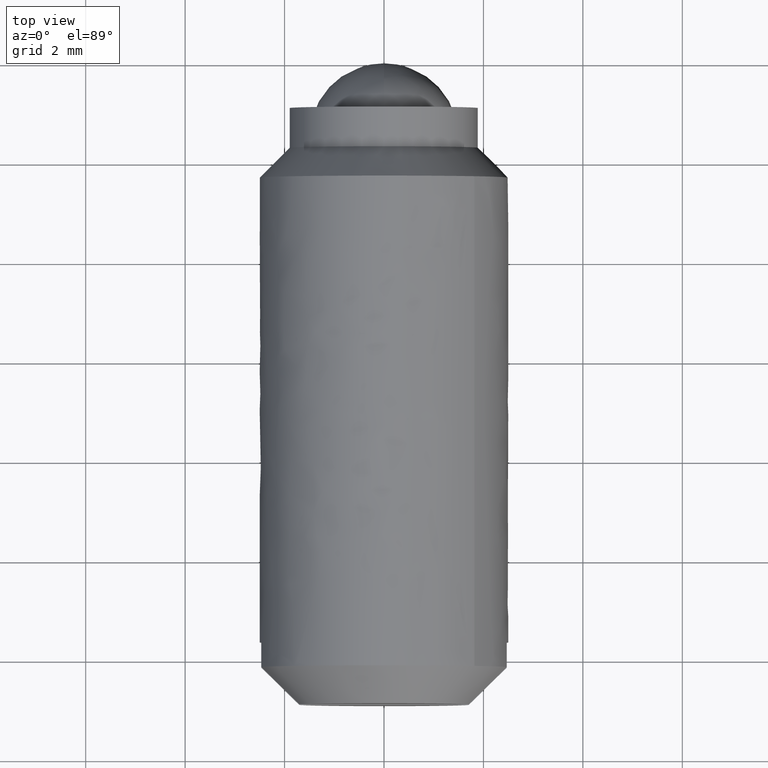
[diagram: clean part render]
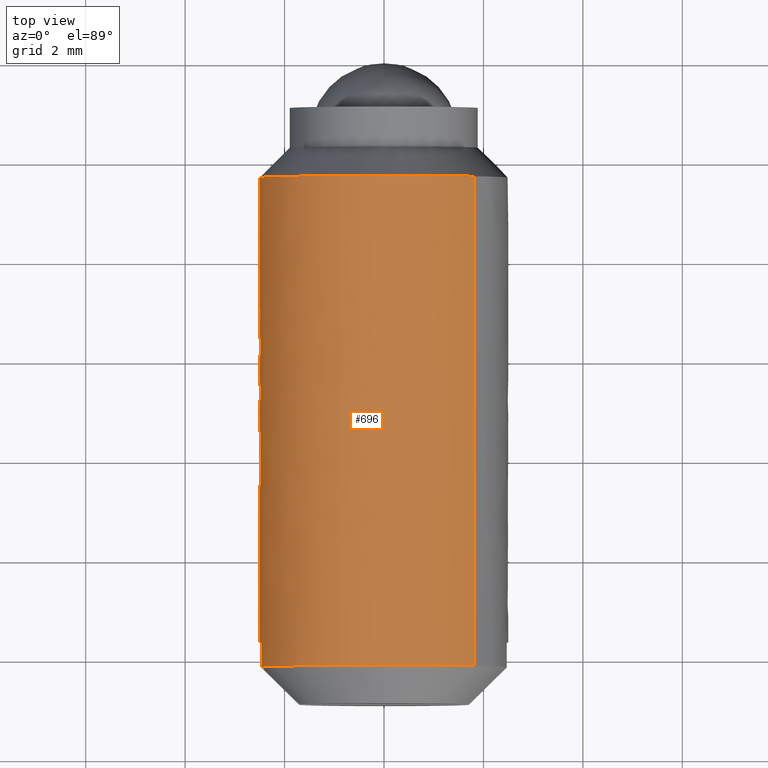
[diagram: same view with one face highlighted and labeled with its STEP entity id]
A machine part, top view. The second image highlights one B-rep face of the part: STEP entity #696.
In plain terms, the highlighted face is a freeform B-spline surface patch.
Its self-contained STEP definition (entity closure, byte-faithful):
#465=CARTESIAN_POINT('',(-2.495336996056258,-2.300000000002961,0.152621348859628));
#466=VERTEX_POINT('',#465);
#472=CARTESIAN_POINT('',(0.0,-2.300000000000000,2.499999999999999));
#473=VERTEX_POINT('',#472);
#474=CARTESIAN_POINT('',(0.0,-2.300000000000000,2.499999999999999));
#475=CARTESIAN_POINT('',(-2.351765167222105,-2.300000000000000,2.500000000000000));
#476=CARTESIAN_POINT('',(-2.495336996056259,-2.300000000002961,0.152621348859628));
#484=(BOUNDED_CURVE()B_SPLINE_CURVE(2,(#474,#475,#476),.UNSPECIFIED.,.F.,.U.)B_SPLINE_CURVE_WITH_KNOTS((3,3),(0.500000000000000,0.739332962238883),.UNSPECIFIED.)CURVE()GEOMETRIC_REPRESENTATION_ITEM()RATIONAL_B_SPLINE_CURVE((1.0,0.719603993286780,0.976072041666589))REPRESENTATION_ITEM(''));
#485=EDGE_CURVE('',#473,#466,#484,.T.);
#487=CARTESIAN_POINT('',(1.818315486528456,-2.299999999999970,1.715729813068122));
#488=VERTEX_POINT('',#487);
#489=CARTESIAN_POINT('',(1.818315486528456,-2.299999999999971,1.715729813068122));
#490=CARTESIAN_POINT('',(1.078292277158913,-2.300000000000000,2.500000000000000));
#491=CARTESIAN_POINT('',(0.0,-2.300000000000000,2.499999999999999));
#499=(BOUNDED_CURVE()B_SPLINE_CURVE(2,(#489,#490,#491),.UNSPECIFIED.,.F.,.U.)B_SPLINE_CURVE_WITH_KNOTS((3,3),(0.370620956215220,0.500000000000000),.UNSPECIFIED.)CURVE()GEOMETRIC_REPRESENTATION_ITEM()RATIONAL_B_SPLINE_CURVE((0.853733119474259,0.848423021675476,1.0))REPRESENTATION_ITEM(''));
#500=EDGE_CURVE('',#488,#473,#499,.T.);
#502=CARTESIAN_POINT('',(1.494303351258331,-2.299999999999954,-2.004259837051412));
#503=VERTEX_POINT('',#502);
#519=CARTESIAN_POINT('',(0.0,-2.300000000000000,-2.500000000000001));
#520=VERTEX_POINT('',#519);
#521=CARTESIAN_POINT('',(0.0,-2.300000000000000,-2.500000000000001));
#522=CARTESIAN_POINT('',(0.829382921732118,-2.300000000000000,-2.500000000000000));
#523=CARTESIAN_POINT('',(1.494303351258331,-2.299999999999954,-2.004259837051412));
#531=(BOUNDED_CURVE()B_SPLINE_CURVE(2,(#521,#522,#523),.UNSPECIFIED.,.F.,.U.)B_SPLINE_CURVE_WITH_KNOTS((3,3),(0.0,0.103121803616288),.UNSPECIFIED.)CURVE()GEOMETRIC_REPRESENTATION_ITEM()RATIONAL_B_SPLINE_CURVE((1.0,0.879185292035907,0.858039628780873))REPRESENTATION_ITEM(''));
#532=EDGE_CURVE('',#520,#503,#531,.T.);
#534=CARTESIAN_POINT('',(-0.879044935992926,-2.300000000001367,-2.340358946937847));
#535=VERTEX_POINT('',#534);
#536=CARTESIAN_POINT('',(-0.879044935992926,-2.300000000001368,-2.340358946937847));
#537=CARTESIAN_POINT('',(-0.454018465181815,-2.299999999999999,-2.500000000000001));
#538=CARTESIAN_POINT('',(0.0,-2.300000000000000,-2.500000000000001));
#546=(BOUNDED_CURVE()B_SPLINE_CURVE(2,(#536,#537,#538),.UNSPECIFIED.,.F.,.U.)B_SPLINE_CURVE_WITH_KNOTS((3,3),(0.940284170897085,1.0),.UNSPECIFIED.)CURVE()GEOMETRIC_REPRESENTATION_ITEM()RATIONAL_B_SPLINE_CURVE((0.893499554633533,0.930038554399733,1.0))REPRESENTATION_ITEM(''));
#547=EDGE_CURVE('',#535,#520,#546,.T.);
#573=CARTESIAN_POINT('',(-2.495336996056259,-2.300000000002961,0.152621348859628));
#574=CARTESIAN_POINT('',(-2.500000000000000,-2.300000000000000,0.076381908268839));
#575=CARTESIAN_POINT('',(-2.500000000000000,-2.300000000000000,-8.511014E-016));
#576=CARTESIAN_POINT('',(-2.500000000000000,-2.300000000000000,-1.731523989214695));
#577=CARTESIAN_POINT('',(-0.879044935992926,-2.300000000001367,-2.340358946937847));
#585=(BOUNDED_CURVE()B_SPLINE_CURVE(2,(#573,#574,#575,#576,#577),.UNSPECIFIED.,.F.,.U.)B_SPLINE_CURVE_WITH_KNOTS((3,2,3),(0.739332962238884,0.750000000000000,0.940284170897086),.UNSPECIFIED.)CURVE()GEOMETRIC_REPRESENTATION_ITEM()RATIONAL_B_SPLINE_CURVE((0.976072041666591,0.987502787899768,1.0,0.777068226786814,0.893499554633534))REPRESENTATION_ITEM(''));
#586=EDGE_CURVE('',#466,#535,#585,.T.);
#592=CARTESIAN_POINT('',(1.818315436100052,-2.053750000000000,1.715729866511703));
#593=CARTESIAN_POINT('',(0.290472229110461,-2.053750000000000,3.334924671844324));
#594=CARTESIAN_POINT('',(-1.494304054914435,-2.053749999999999,2.004259312430971));
#595=CARTESIAN_POINT('',(-3.498563367345406,-2.053749999999998,0.509955257516536));
#596=CARTESIAN_POINT('',(-2.004259312430972,-2.053749999999999,-1.494304054914436));
#597=CARTESIAN_POINT('',(-0.509955257516536,-2.053749999999998,-3.498563367345407));
#598=CARTESIAN_POINT('',(1.494304054914435,-2.053749999999999,-2.004259312430972));
#599=CARTESIAN_POINT('',(1.818315436100052,-12.402406250000002,1.715729866511703));
#600=CARTESIAN_POINT('',(0.290472229110461,-12.402406250000002,3.334924671844324));
#601=CARTESIAN_POINT('',(-1.494304054914435,-12.402406250000000,2.004259312430971));
#602=CARTESIAN_POINT('',(-3.498563367345406,-12.402406250000002,0.509955257516536));
#603=CARTESIAN_POINT('',(-2.004259312430972,-12.402406250000000,-1.494304054914436));
#604=CARTESIAN_POINT('',(-0.509955257516536,-12.402406250000002,-3.498563367345407));
#605=CARTESIAN_POINT('',(1.494304054914435,-12.402406250000000,-2.004259312430972));
#613=(BOUNDED_SURFACE()B_SPLINE_SURFACE(2,1,((#592,#599),(#593,#600),(#594,#601),(#595,#602),(#596,#603),(#597,#604),(#598,#605)),.UNSPECIFIED.,.F.,.F.,.U.)B_SPLINE_SURFACE_WITH_KNOTS((3,2,2,3),(2,2),(0.0,3.810764773832473,7.952900397563421,12.095036021294369),(0.0,10.348656249999999),.UNSPECIFIED.)GEOMETRIC_REPRESENTATION_ITEM()RATIONAL_B_SPLINE_SURFACE(((0.956886118190660,0.956886118190660),(0.730538238691624,0.730538238691624),(1.0,1.0),(0.707106781186548,0.707106781186548),(1.0,1.0),(0.707106781186548,0.707106781186548),(1.0,1.0)))REPRESENTATION_ITEM('')SURFACE());
#614=ORIENTED_EDGE('',*,*,#500,.T.);
#615=ORIENTED_EDGE('',*,*,#485,.T.);
#616=ORIENTED_EDGE('',*,*,#586,.T.);
#617=ORIENTED_EDGE('',*,*,#547,.T.);
#618=ORIENTED_EDGE('',*,*,#532,.T.);
#619=CARTESIAN_POINT('',(1.494304036467052,-12.150000000000000,-2.004259374637578));
#620=VERTEX_POINT('',#619);
#621=CARTESIAN_POINT('',(1.494303351258331,-2.299999999999954,-2.004259837051412));
#622=CARTESIAN_POINT('',(1.494304036467052,-12.150000000000000,-2.004259374637578));
#623=QUASI_UNIFORM_CURVE('',1,(#621,#622),.UNSPECIFIED.,.F.,.U.);
#624=EDGE_CURVE('',#503,#620,#623,.T.);
#625=ORIENTED_EDGE('',*,*,#624,.T.);
#626=CARTESIAN_POINT('',(-2.467793000000000,-12.150000000000000,-0.400000000000000));
#627=VERTEX_POINT('',#626);
#628=CARTESIAN_POINT('',(-2.467793000000000,-12.150000000000000,-0.400000000000000));
#629=CARTESIAN_POINT('',(-2.127407422512504,-12.149999999999997,-2.500000000000001));
#630=CARTESIAN_POINT('',(0.0,-12.150000000000000,-2.500000000000001));
#631=CARTESIAN_POINT('',(0.829383796575018,-12.149999999999995,-2.500000000000001));
#632=CARTESIAN_POINT('',(1.494304036467052,-12.149999999999995,-2.004259374637578));
#640=(BOUNDED_CURVE()B_SPLINE_CURVE(2,(#628,#629,#630,#631,#632),.UNSPECIFIED.,.F.,.U.)B_SPLINE_CURVE_WITH_KNOTS((3,2,3),(0.0,0.500000000000000,0.728112247232875),.UNSPECIFIED.)CURVE()GEOMETRIC_REPRESENTATION_ITEM()RATIONAL_B_SPLINE_CURVE((1.0,0.761577300960691,1.0,0.891225724661632,0.881702426877514))REPRESENTATION_ITEM(''));
#641=EDGE_CURVE('',#627,#620,#640,.T.);
#642=ORIENTED_EDGE('',*,*,#641,.F.);
#643=CARTESIAN_POINT('',(-2.467793000000000,-11.650000000000000,-0.400000000000000));
#644=VERTEX_POINT('',#643);
#645=CARTESIAN_POINT('',(-2.467793000000000,-11.650000000000000,-0.400000000000000));
#646=CARTESIAN_POINT('',(-2.467793000000000,-12.150000000000000,-0.400000000000000));
#647=QUASI_UNIFORM_CURVE('',1,(#645,#646),.UNSPECIFIED.,.F.,.U.);
#648=EDGE_CURVE('',#644,#627,#647,.T.);
#649=ORIENTED_EDGE('',*,*,#648,.F.);
#650=CARTESIAN_POINT('',(-2.467792535850615,-11.650000000000000,0.399999999999991));
#651=VERTEX_POINT('',#650);
#652=CARTESIAN_POINT('',(-2.467792535850615,-11.650000000000000,0.399999999999990));
#653=CARTESIAN_POINT('',(-2.532627801631262,-11.650000000000000,0.000000037616551));
#654=CARTESIAN_POINT('',(-2.467793000000000,-11.650000000000000,-0.400000000000000));
#662=(BOUNDED_CURVE()B_SPLINE_CURVE(2,(#652,#653,#654),.UNSPECIFIED.,.F.,.U.)CURVE()GEOMETRIC_REPRESENTATION_ITEM()QUASI_UNIFORM_CURVE()RATIONAL_B_SPLINE_CURVE((1.0,0.987117016716690,1.0))REPRESENTATION_ITEM(''));
#663=EDGE_CURVE('',#651,#644,#662,.T.);
#664=ORIENTED_EDGE('',*,*,#663,.F.);
#665=CARTESIAN_POINT('',(-2.467792535850615,-12.150000000000000,0.399999999999991));
#666=VERTEX_POINT('',#665);
#667=CARTESIAN_POINT('',(-2.467792535850615,-11.650000000000000,0.399999999999991));
#668=CARTESIAN_POINT('',(-2.467792535850615,-12.150000000000000,0.399999999999991));
#669=QUASI_UNIFORM_CURVE('',1,(#667,#668),.UNSPECIFIED.,.F.,.U.);
#670=EDGE_CURVE('',#651,#666,#669,.T.);
#671=ORIENTED_EDGE('',*,*,#670,.T.);
#672=CARTESIAN_POINT('',(1.818315981910234,-12.150000000000000,1.715729391257244));
#673=VERTEX_POINT('',#672);
#674=CARTESIAN_POINT('',(1.818315981910233,-12.149999999999999,1.715729391257244));
#675=CARTESIAN_POINT('',(1.078293002430174,-12.150000000000004,2.499999983984353));
#676=CARTESIAN_POINT('',(0.000000037131944,-12.150000000000000,2.499999999999999));
#677=CARTESIAN_POINT('',(-2.127407353370267,-12.150000000000000,2.500000031597907));
#678=CARTESIAN_POINT('',(-2.467792535850615,-12.150000000000000,0.399999999999992));
#686=(BOUNDED_CURVE()B_SPLINE_CURVE(2,(#674,#675,#676,#677,#678),.UNSPECIFIED.,.F.,.U.)B_SPLINE_CURVE_WITH_KNOTS((3,2,3),(0.212803628645489,0.500000000000000,1.0),.UNSPECIFIED.)CURVE()GEOMETRIC_REPRESENTATION_ITEM()RATIONAL_B_SPLINE_CURVE((0.883427648863178,0.863051734739189,1.0,0.761577305773540,1.0))REPRESENTATION_ITEM(''));
#687=EDGE_CURVE('',#673,#666,#686,.T.);
#688=ORIENTED_EDGE('',*,*,#687,.F.);
#689=CARTESIAN_POINT('',(1.818315486528456,-2.299999999999970,1.715729813068122));
#690=CARTESIAN_POINT('',(1.818315981910234,-12.150000000000000,1.715729391257244));
#691=QUASI_UNIFORM_CURVE('',1,(#689,#690),.UNSPECIFIED.,.F.,.U.);
#692=EDGE_CURVE('',#488,#673,#691,.T.);
#693=ORIENTED_EDGE('',*,*,#692,.F.);
#694=EDGE_LOOP('',(#614,#615,#616,#617,#618,#625,#642,#649,#664,#671,#688,#693));
#695=FACE_OUTER_BOUND('',#694,.T.);
#696=ADVANCED_FACE('',(#695),#613,.T.);